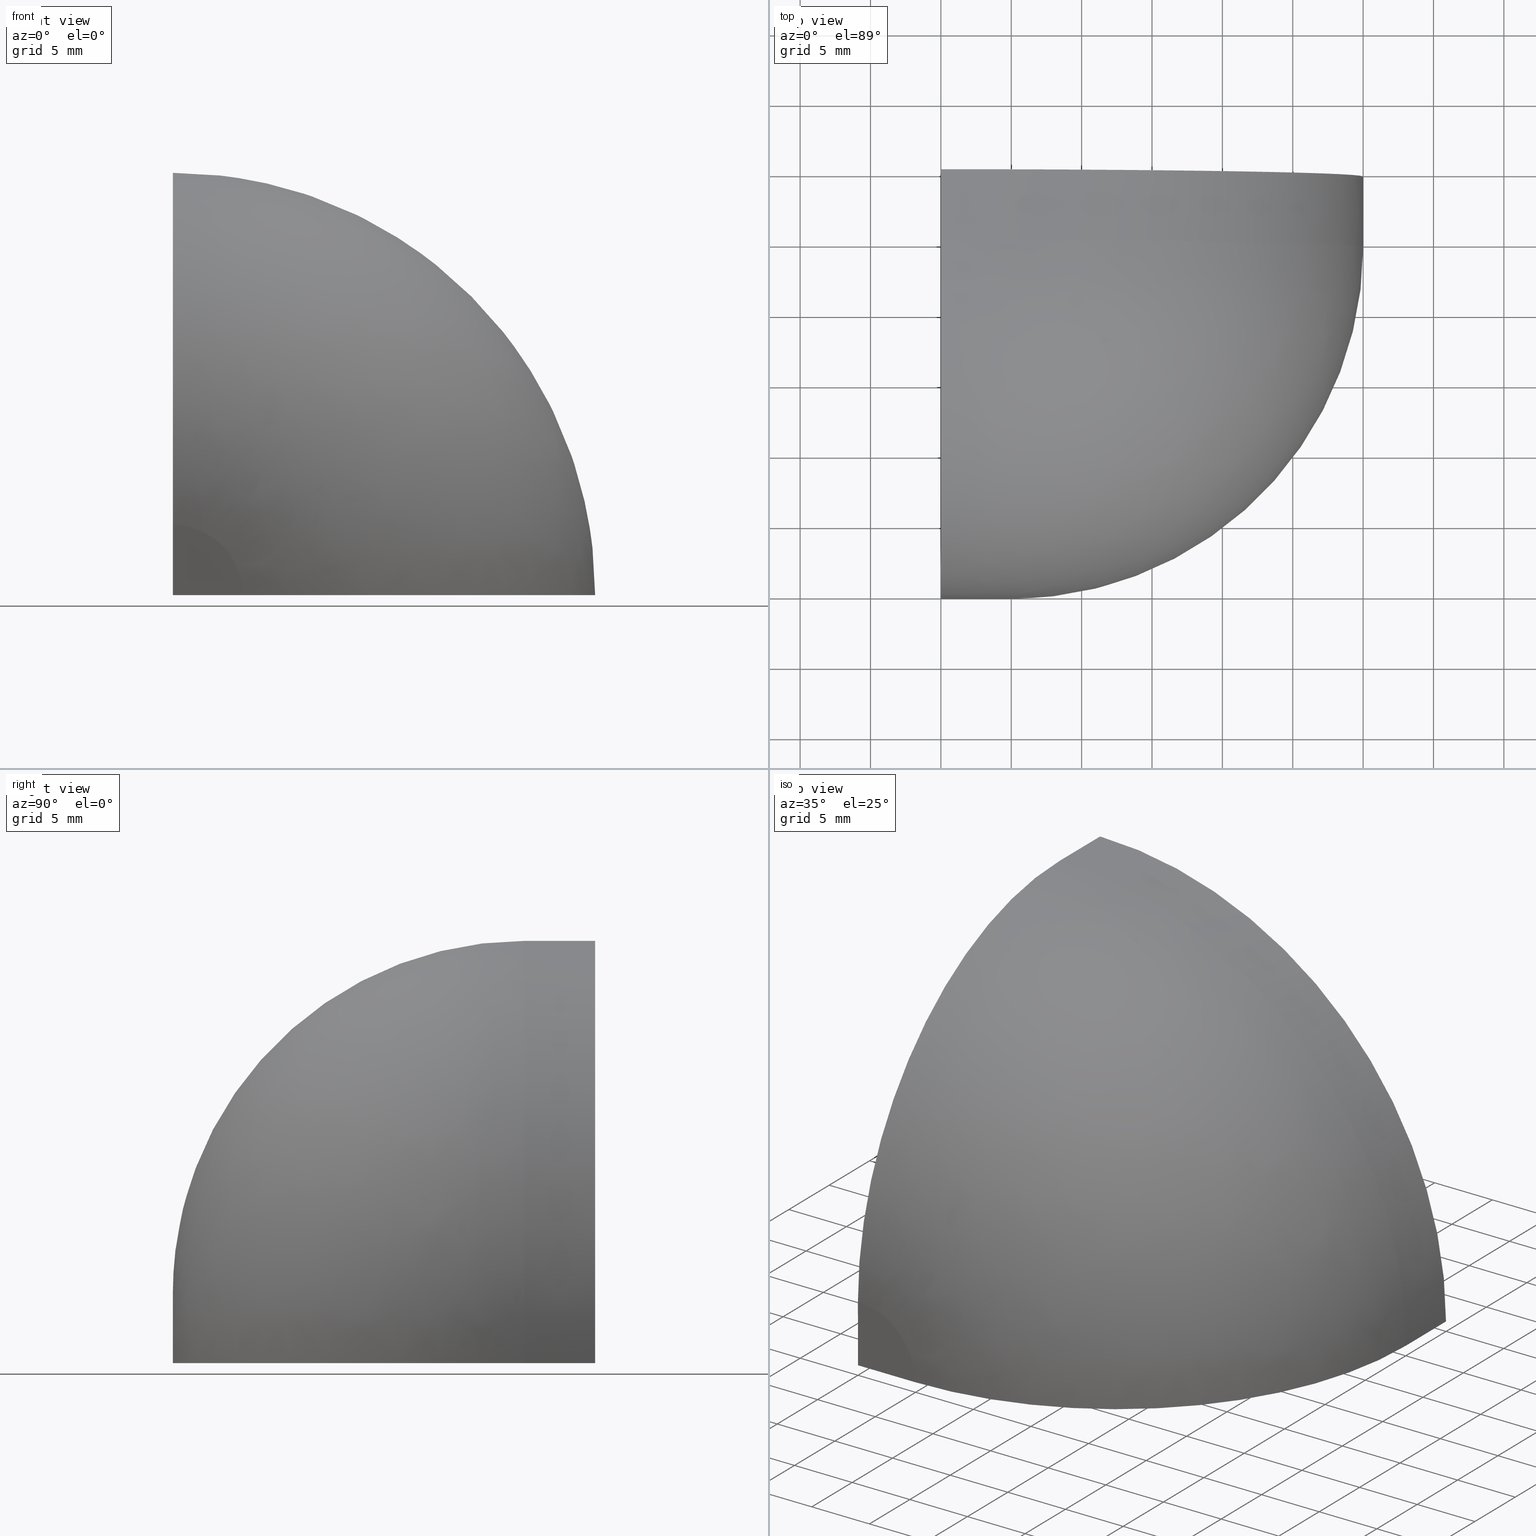
[diagram: canonical four-view strip — front | top / right | iso, engineering-drawing reading convention]
A machine part, canonical four-view strip (front | top / right | iso — engineering-drawing reading convention). The complete STEP part file that produces these views, byte-faithful:
ISO-10303-21;
HEADER;
/* Generated by software containing ST-Developer
 * from STEP Tools, Inc. (www.steptools.com) 
 */

FILE_DESCRIPTION(
/* description */ ('TAPPO ROTONDO 3 VIE SERIE 30 GRIGIO'),
/* implementation_level */ '2;1');

FILE_NAME(
/* name */ 
'Q:\\Catalogo\\2_Accessori Dierre\\Per Download Web e catalogo cartace
o\\CATALOGO ELEMENTI ASSEMBLAGGIO\\PAGINA 36\\CTPTG0000016.stp',
/* time_stamp */ '2018-11-05T14:07:49+01:00',
/* author */ ('fzagni'),
/* organization */ (''),
/* preprocessor_version */ 'ST-DEVELOPER v16.1',
/* originating_system */ 'Autodesk Inventor 2016',
/* authorisation */ '');

FILE_SCHEMA (('AUTOMOTIVE_DESIGN { 1 0 10303 214 3 1 1 }'));
ENDSEC;

DATA;
#10=MECHANICAL_DESIGN_GEOMETRIC_PRESENTATION_REPRESENTATION('',(#13),#302);
#11=SHAPE_REPRESENTATION_RELATIONSHIP('SRR','None',#311,#12);
#12=ADVANCED_BREP_SHAPE_REPRESENTATION('',(#14),#301);
#13=STYLED_ITEM('',(#320),#14);
#14=MANIFOLD_SOLID_BREP('Solido2',#160);
#15=PLANE('',#174);
#16=PLANE('',#177);
#17=PLANE('',#178);
#18=LINE('',#252,#29);
#19=LINE('',#253,#30);
#20=LINE('',#257,#31);
#21=LINE('',#259,#32);
#22=LINE('',#283,#33);
#23=LINE('',#285,#34);
#24=LINE('',#289,#35);
#25=LINE('',#291,#36);
#26=LINE('',#294,#37);
#27=LINE('',#295,#38);
#28=LINE('',#297,#39);
#29=VECTOR('',#191,4.98962349888907);
#30=VECTOR('',#192,4.98962349888907);
#31=VECTOR('',#195,4.97538714478859);
#32=VECTOR('',#196,4.97538714478859);
#33=VECTOR('',#207,5.0010638607987);
#34=VECTOR('',#208,5.0010638607987);
#35=VECTOR('',#213,2.00000117402253);
#36=VECTOR('',#214,2.00000117402253);
#37=VECTOR('',#219,5.00000292033832);
#38=VECTOR('',#220,5.00000292033832);
#39=VECTOR('',#223,2.00000054143192);
#40=CONICAL_SURFACE('',#166,4.98962214811873,89.9578405913785);
#41=CONICAL_SURFACE('',#167,2.48769289893613,89.9578405913526);
#42=CONICAL_SURFACE('',#172,27.9972905586299,0.0620812910435585);
#43=CONICAL_SURFACE('',#176,29.9972911578758,0.0620812910434206);
#44=FACE_OUTER_BOUND('',#53,.T.);
#45=FACE_OUTER_BOUND('',#54,.T.);
#46=FACE_OUTER_BOUND('',#55,.T.);
#47=FACE_OUTER_BOUND('',#56,.T.);
#48=FACE_OUTER_BOUND('',#57,.T.);
#49=FACE_OUTER_BOUND('',#58,.T.);
#50=FACE_OUTER_BOUND('',#59,.T.);
#51=FACE_OUTER_BOUND('',#60,.T.);
#52=FACE_OUTER_BOUND('',#61,.T.);
#53=EDGE_LOOP('',(#107,#108,#109,#110));
#54=EDGE_LOOP('',(#111,#112,#113));
#55=EDGE_LOOP('',(#114,#115,#116));
#56=EDGE_LOOP('',(#117,#118,#119,#120));
#57=EDGE_LOOP('',(#121,#122,#123,#124));
#58=EDGE_LOOP('',(#125,#126,#127,#128));
#59=EDGE_LOOP('',(#129,#130,#131,#132));
#60=EDGE_LOOP('',(#133,#134,#135,#136,#137,#138,#139,#140));
#61=EDGE_LOOP('',(#141,#142,#143,#144,#145,#146,#147,#148));
#62=CIRCLE('',#162,24.9999999999996);
#63=CIRCLE('',#163,29.9999999662594);
#64=CIRCLE('',#164,24.9999999999996);
#65=CIRCLE('',#165,4.98962214811873);
#66=CIRCLE('',#168,4.97538579787226);
#67=CIRCLE('',#169,22.9999999999996);
#68=CIRCLE('',#170,22.9999999999996);
#69=CIRCLE('',#171,27.99999994179);
#70=CIRCLE('',#173,27.9945811754697);
#71=CIRCLE('',#175,29.9945823494923);
#72=VERTEX_POINT('',#242);
#73=VERTEX_POINT('',#243);
#74=VERTEX_POINT('',#245);
#75=VERTEX_POINT('',#247);
#76=VERTEX_POINT('',#251);
#77=VERTEX_POINT('',#255);
#78=VERTEX_POINT('',#256);
#79=VERTEX_POINT('',#258);
#80=VERTEX_POINT('',#276);
#81=VERTEX_POINT('',#278);
#82=VERTEX_POINT('',#282);
#83=VERTEX_POINT('',#284);
#84=VERTEX_POINT('',#288);
#85=VERTEX_POINT('',#290);
#86=EDGE_CURVE('',#72,#73,#62,.T.);
#87=EDGE_CURVE('',#72,#74,#63,.T.);
#88=EDGE_CURVE('',#75,#74,#64,.T.);
#89=EDGE_CURVE('',#73,#75,#65,.T.);
#90=EDGE_CURVE('',#73,#76,#18,.T.);
#91=EDGE_CURVE('',#76,#75,#19,.T.);
#92=EDGE_CURVE('',#77,#78,#20,.T.);
#93=EDGE_CURVE('',#79,#77,#21,.T.);
#94=EDGE_CURVE('',#78,#79,#66,.T.);
#95=EDGE_CURVE('',#78,#80,#67,.T.);
#96=EDGE_CURVE('',#81,#79,#68,.T.);
#97=EDGE_CURVE('',#80,#81,#69,.T.);
#98=EDGE_CURVE('',#80,#82,#22,.T.);
#99=EDGE_CURVE('',#83,#81,#23,.T.);
#100=EDGE_CURVE('',#82,#83,#70,.T.);
#101=EDGE_CURVE('',#82,#84,#24,.T.);
#102=EDGE_CURVE('',#85,#83,#25,.T.);
#103=EDGE_CURVE('',#84,#85,#71,.T.);
#104=EDGE_CURVE('',#84,#72,#26,.T.);
#105=EDGE_CURVE('',#74,#85,#27,.T.);
#106=EDGE_CURVE('',#76,#77,#28,.T.);
#107=ORIENTED_EDGE('',*,*,#86,.F.);
#108=ORIENTED_EDGE('',*,*,#87,.T.);
#109=ORIENTED_EDGE('',*,*,#88,.F.);
#110=ORIENTED_EDGE('',*,*,#89,.F.);
#111=ORIENTED_EDGE('',*,*,#90,.F.);
#112=ORIENTED_EDGE('',*,*,#89,.T.);
#113=ORIENTED_EDGE('',*,*,#91,.F.);
#114=ORIENTED_EDGE('',*,*,#92,.F.);
#115=ORIENTED_EDGE('',*,*,#93,.F.);
#116=ORIENTED_EDGE('',*,*,#94,.F.);
#117=ORIENTED_EDGE('',*,*,#95,.F.);
#118=ORIENTED_EDGE('',*,*,#94,.T.);
#119=ORIENTED_EDGE('',*,*,#96,.F.);
#120=ORIENTED_EDGE('',*,*,#97,.F.);
#121=ORIENTED_EDGE('',*,*,#98,.F.);
#122=ORIENTED_EDGE('',*,*,#97,.T.);
#123=ORIENTED_EDGE('',*,*,#99,.F.);
#124=ORIENTED_EDGE('',*,*,#100,.F.);
#125=ORIENTED_EDGE('',*,*,#101,.F.);
#126=ORIENTED_EDGE('',*,*,#100,.T.);
#127=ORIENTED_EDGE('',*,*,#102,.F.);
#128=ORIENTED_EDGE('',*,*,#103,.F.);
#129=ORIENTED_EDGE('',*,*,#104,.F.);
#130=ORIENTED_EDGE('',*,*,#103,.T.);
#131=ORIENTED_EDGE('',*,*,#105,.F.);
#132=ORIENTED_EDGE('',*,*,#87,.F.);
#133=ORIENTED_EDGE('',*,*,#104,.T.);
#134=ORIENTED_EDGE('',*,*,#86,.T.);
#135=ORIENTED_EDGE('',*,*,#90,.T.);
#136=ORIENTED_EDGE('',*,*,#106,.T.);
#137=ORIENTED_EDGE('',*,*,#92,.T.);
#138=ORIENTED_EDGE('',*,*,#95,.T.);
#139=ORIENTED_EDGE('',*,*,#98,.T.);
#140=ORIENTED_EDGE('',*,*,#101,.T.);
#141=ORIENTED_EDGE('',*,*,#105,.T.);
#142=ORIENTED_EDGE('',*,*,#102,.T.);
#143=ORIENTED_EDGE('',*,*,#99,.T.);
#144=ORIENTED_EDGE('',*,*,#96,.T.);
#145=ORIENTED_EDGE('',*,*,#93,.T.);
#146=ORIENTED_EDGE('',*,*,#106,.F.);
#147=ORIENTED_EDGE('',*,*,#91,.T.);
#148=ORIENTED_EDGE('',*,*,#88,.T.);
#149=(
BOUNDED_SURFACE()
B_SPLINE_SURFACE(2,2,((#227,#228,#229),(#230,#231,#232),(#233,#234,#235),
(#236,#237,#238),(#239,#240,#241)),.UNSPECIFIED.,.F.,.F.,.F.)
B_SPLINE_SURFACE_WITH_KNOTS((3,2,3),(3,3),(-1.11244347067442E-14,0.785605719766225,
1.57121143953246),(1.5707963267949,3.14159265358979),.UNSPECIFIED.)
GEOMETRIC_REPRESENTATION_ITEM()
RATIONAL_B_SPLINE_SURFACE(((1.,0.707106781186548,1.),(0.9238398133445,0.65325339674601,
0.9238398133445),(1.,0.707106781186548,1.),(0.923839813344502,0.653253396746012,
0.923839813344502),(1.,0.707106781186548,1.)))
REPRESENTATION_ITEM('')
SURFACE()
);
#150=(
BOUNDED_SURFACE()
B_SPLINE_SURFACE(2,2,((#261,#262,#263),(#264,#265,#266),(#267,#268,#269),
(#270,#271,#272),(#273,#274,#275)),.UNSPECIFIED.,.F.,.F.,.F.)
B_SPLINE_SURFACE_WITH_KNOTS((3,2,3),(3,3),(4.61278190302058E-5,0.785956318026223,
1.57186650823342),(1.5707963267949,3.14159265358979),.UNSPECIFIED.)
GEOMETRIC_REPRESENTATION_ITEM()
RATIONAL_B_SPLINE_SURFACE(((1.,0.707106781186548,1.),(0.923781530146996,
0.653212184301826,0.923781530146996),(1.,0.707106781186548,1.),(0.923781530146995,
0.653212184301825,0.923781530146995),(1.,0.707106781186548,1.)))
REPRESENTATION_ITEM('')
SURFACE()
);
#151=ADVANCED_FACE('',(#44),#149,.F.);
#152=ADVANCED_FACE('',(#45),#40,.F.);
#153=ADVANCED_FACE('',(#46),#41,.T.);
#154=ADVANCED_FACE('',(#47),#150,.T.);
#155=ADVANCED_FACE('',(#48),#42,.F.);
#156=ADVANCED_FACE('',(#49),#15,.T.);
#157=ADVANCED_FACE('',(#50),#43,.T.);
#158=ADVANCED_FACE('',(#51),#16,.F.);
#159=ADVANCED_FACE('',(#52),#17,.T.);
#160=CLOSED_SHELL('',(#151,#152,#153,#154,#155,#156,#157,#158,#159));
#161=AXIS2_PLACEMENT_3D('placement',#226,#179,#180);
#162=AXIS2_PLACEMENT_3D('',#244,#181,#182);
#163=AXIS2_PLACEMENT_3D('',#246,#183,#184);
#164=AXIS2_PLACEMENT_3D('',#248,#185,#186);
#165=AXIS2_PLACEMENT_3D('',#249,#187,#188);
#166=AXIS2_PLACEMENT_3D('',#250,#189,#190);
#167=AXIS2_PLACEMENT_3D('',#254,#193,#194);
#168=AXIS2_PLACEMENT_3D('',#260,#197,#198);
#169=AXIS2_PLACEMENT_3D('',#277,#199,#200);
#170=AXIS2_PLACEMENT_3D('',#279,#201,#202);
#171=AXIS2_PLACEMENT_3D('',#280,#203,#204);
#172=AXIS2_PLACEMENT_3D('',#281,#205,#206);
#173=AXIS2_PLACEMENT_3D('',#286,#209,#210);
#174=AXIS2_PLACEMENT_3D('',#287,#211,#212);
#175=AXIS2_PLACEMENT_3D('',#292,#215,#216);
#176=AXIS2_PLACEMENT_3D('',#293,#217,#218);
#177=AXIS2_PLACEMENT_3D('',#296,#221,#222);
#178=AXIS2_PLACEMENT_3D('',#298,#224,#225);
#179=DIRECTION('axis',(0.,0.,1.));
#180=DIRECTION('refdir',(1.,0.,0.));
#181=DIRECTION('center_axis',(0.,0.,-1.));
#182=DIRECTION('ref_axis',(0.000415112725642761,0.999999913840709,0.));
#183=DIRECTION('center_axis',(0.,-1.,0.));
#184=DIRECTION('ref_axis',(1.,0.,-1.48029736783175E-16));
#185=DIRECTION('center_axis',(-1.,0.,6.12323399573677E-17));
#186=DIRECTION('ref_axis',(2.5418323537187E-20,0.999999913840709,0.000415112725642761));
#187=DIRECTION('center_axis',(-6.29343229637442E-16,-1.,-1.5193689603784E-15));
#188=DIRECTION('ref_axis',(1.,-8.90025730740955E-16,2.22506432685239E-16));
#189=DIRECTION('center_axis',(0.,-1.,0.));
#190=DIRECTION('ref_axis',(1.,0.,0.));
#191=DIRECTION('',(-0.999999729284115,0.000735820424844899,0.));
#192=DIRECTION('',(6.12323233808005E-17,-0.000735820424844899,0.999999729284115));
#193=DIRECTION('center_axis',(0.,-1.,0.));
#194=DIRECTION('ref_axis',(1.,0.,0.));
#195=DIRECTION('',(0.999999729284114,-0.000735820425271908,0.));
#196=DIRECTION('',(-6.12323233808005E-17,0.000735820425271908,-0.999999729284114));
#197=DIRECTION('center_axis',(-6.31144004694163E-16,-1.,-1.52371641594311E-15));
#198=DIRECTION('ref_axis',(1.,-8.92572411248951E-16,8.92572411248951E-16));
#199=DIRECTION('center_axis',(0.,0.,1.));
#200=DIRECTION('ref_axis',(-0.00107018123424103,-0.999999427355899,0.));
#201=DIRECTION('center_axis',(1.,0.,-6.12323399573677E-17));
#202=DIRECTION('ref_axis',(-6.55297011510423E-20,-0.999999427355899,-0.00107018123424103));
#203=DIRECTION('center_axis',(0.,-1.,0.));
#204=DIRECTION('ref_axis',(1.,0.,-7.93016447809451E-17));
#205=DIRECTION('center_axis',(0.,-1.,0.));
#206=DIRECTION('ref_axis',(1.,0.,0.));
#207=DIRECTION('',(-0.00108352272058569,0.999999412989085,0.));
#208=DIRECTION('',(6.63466315784349E-20,-0.999999412989085,0.00108352272058569));
#209=DIRECTION('center_axis',(0.,-1.,0.));
#210=DIRECTION('ref_axis',(1.,0.,7.93169947902625E-17));
#211=DIRECTION('center_axis',(0.,1.,0.));
#212=DIRECTION('ref_axis',(0.,0.,1.));
#213=DIRECTION('',(1.,-2.7755559322803E-16,0.));
#214=DIRECTION('',(-6.12323399573677E-17,2.7755559322803E-16,-1.));
#215=DIRECTION('center_axis',(0.,-1.,0.));
#216=DIRECTION('ref_axis',(1.,0.,4.44169421673158E-16));
#217=DIRECTION('center_axis',(0.,-1.,0.));
#218=DIRECTION('ref_axis',(1.,0.,0.));
#219=DIRECTION('',(0.00108352272058328,-0.999999412989085,0.));
#220=DIRECTION('',(-6.63466315782876E-20,0.999999412989085,-0.00108352272058328));
#221=DIRECTION('center_axis',(0.,0.,1.));
#222=DIRECTION('ref_axis',(1.,0.,0.));
#223=DIRECTION('',(0.,1.,0.));
#224=DIRECTION('center_axis',(-1.,0.,6.12323399573677E-17));
#225=DIRECTION('ref_axis',(6.12323399573677E-17,0.,1.));
#226=CARTESIAN_POINT('',(0.,0.,0.));
#227=CARTESIAN_POINT('Ctrl Pts',(29.9999999662594,-4.99999998528202,0.));
#228=CARTESIAN_POINT('Ctrl Pts',(29.9999999662594,-4.99999998528202,29.9999999662594));
#229=CARTESIAN_POINT('Ctrl Pts',(0.,-4.99999998528202,29.9999999662594));
#230=CARTESIAN_POINT('Ctrl Pts',(29.9999999662595,-15.3583787679337,0.));
#231=CARTESIAN_POINT('Ctrl Pts',(29.9999999662595,-15.3583787679337,29.9999999662595));
#232=CARTESIAN_POINT('Ctrl Pts',(0.,-15.3583787679337,29.9999999662595));
#233=CARTESIAN_POINT('Ctrl Pts',(22.6740000022797,-22.6813382470415,0.));
#234=CARTESIAN_POINT('Ctrl Pts',(22.6740000022797,-22.6813382470415,22.6740000022797));
#235=CARTESIAN_POINT('Ctrl Pts',(0.,-22.6813382470415,22.6740000022797));
#236=CARTESIAN_POINT('Ctrl Pts',(15.3480000382998,-30.0042977261494,0.));
#237=CARTESIAN_POINT('Ctrl Pts',(15.3480000382998,-30.0042977261494,15.3480000382998));
#238=CARTESIAN_POINT('Ctrl Pts',(0.,-30.0042977261494,15.3480000382998));
#239=CARTESIAN_POINT('Ctrl Pts',(4.98962214811873,-29.9999978312996,0.));
#240=CARTESIAN_POINT('Ctrl Pts',(4.98962214811873,-29.9999978312996,4.98962214811873));
#241=CARTESIAN_POINT('Ctrl Pts',(0.,-29.9999978312996,4.98962214811873));
#242=CARTESIAN_POINT('',(29.9999999662594,-4.99999998528203,0.));
#243=CARTESIAN_POINT('',(4.98962214811873,-29.9999978312975,0.));
#244=CARTESIAN_POINT('Origin',(4.9999999662598,-4.9999999852823,0.));
#245=CARTESIAN_POINT('',(1.83697019665502E-15,-4.99999998528203,29.9999999662594));
#246=CARTESIAN_POINT('Origin',(4.44089209850063E-15,-4.99999998528203,4.44089209850063E-15));
#247=CARTESIAN_POINT('',(3.05526239632417E-16,-29.9999978312975,4.98962214811873));
#248=CARTESIAN_POINT('Origin',(3.06161697720847E-16,-4.9999999852823,4.9999999662598));
#249=CARTESIAN_POINT('Origin',(0.,-29.9999978312975,-1.11022302462516E-15));
#250=CARTESIAN_POINT('Origin',(0.,-29.9999978312975,0.));
#251=CARTESIAN_POINT('',(0.,-29.9963263644147,0.));
#252=CARTESIAN_POINT('',(4.98962214811873,-29.9999978312975,0.));
#253=CARTESIAN_POINT('',(3.05526239632417E-16,-29.9999978312975,4.98962214811873));
#254=CARTESIAN_POINT('Origin',(0.,-27.9981563187252,0.));
#255=CARTESIAN_POINT('',(0.,-27.9963258229828,0.));
#256=CARTESIAN_POINT('',(4.97538579787225,-27.9999868144676,0.));
#257=CARTESIAN_POINT('',(0.,-27.9963258229828,0.));
#258=CARTESIAN_POINT('',(3.04654514594373E-16,-27.9999868144676,4.97538579787225));
#259=CARTESIAN_POINT('',(0.,-27.9963258229828,0.));
#260=CARTESIAN_POINT('Origin',(-2.77555756156289E-15,-27.9999868144676,
-4.44089209850063E-15));
#261=CARTESIAN_POINT('Ctrl Pts',(27.99999994179,-5.00106092511962,0.));
#262=CARTESIAN_POINT('Ctrl Pts',(27.99999994179,-5.00106092511962,27.99999994179));
#263=CARTESIAN_POINT('Ctrl Pts',(0.,-5.00106092511962,27.99999994179));
#264=CARTESIAN_POINT('Ctrl Pts',(27.9995601678702,-14.5348721636404,0.));
#265=CARTESIAN_POINT('Ctrl Pts',(27.9995601678702,-14.5348721636404,27.9995601678702));
#266=CARTESIAN_POINT('Ctrl Pts',(0.,-14.5348721636404,27.9995601678702));
#267=CARTESIAN_POINT('Ctrl Pts',(21.2543758774627,-21.2725309419986,0.));
#268=CARTESIAN_POINT('Ctrl Pts',(21.2543758774627,-21.2725309419986,21.2543758774627));
#269=CARTESIAN_POINT('Ctrl Pts',(0.,-21.2725309419986,21.2543758774627));
#270=CARTESIAN_POINT('Ctrl Pts',(14.5091915870552,-28.0101897203567,0.));
#271=CARTESIAN_POINT('Ctrl Pts',(14.5091915870552,-28.0101897203567,14.5091915870552));
#272=CARTESIAN_POINT('Ctrl Pts',(0.,-28.0101897203567,14.5091915870552));
#273=CARTESIAN_POINT('Ctrl Pts',(4.97538579787225,-27.9999868144676,0.));
#274=CARTESIAN_POINT('Ctrl Pts',(4.97538579787225,-27.9999868144676,4.97538579787225));
#275=CARTESIAN_POINT('Ctrl Pts',(0.,-27.9999868144676,4.97538579787225));
#276=CARTESIAN_POINT('',(27.99999994179,-5.00106092511962,0.));
#277=CARTESIAN_POINT('Origin',(4.9999999662598,-4.9999999852823,0.));
#278=CARTESIAN_POINT('',(1.71450551524196E-15,-5.00106092511962,27.99999994179));
#279=CARTESIAN_POINT('Origin',(3.06161697720847E-16,-4.9999999852823,4.9999999662598));
#280=CARTESIAN_POINT('Origin',(0.,-5.00106092511962,2.22044604925031E-15));
#281=CARTESIAN_POINT('Origin',(0.,-2.50053046255981,0.));
#282=CARTESIAN_POINT('',(27.9945811754697,0.,0.));
#283=CARTESIAN_POINT('',(27.99999994179,-5.00106092511962,0.));
#284=CARTESIAN_POINT('',(1.71417371150049E-15,0.,27.9945811754697));
#285=CARTESIAN_POINT('',(1.71450551524196E-15,-5.00106092511962,27.99999994179));
#286=CARTESIAN_POINT('Origin',(-6.66133814775094E-15,0.,-2.22044604925031E-15));
#287=CARTESIAN_POINT('Origin',(29.9945823494923,-5.55111512312578E-16,0.));
#288=CARTESIAN_POINT('',(29.9945823494923,-5.55111512312578E-16,0.));
#289=CARTESIAN_POINT('',(27.9945811754697,0.,0.));
#290=CARTESIAN_POINT('',(1.83663846330337E-15,-5.55111512312578E-16,29.9945823494923));
#291=CARTESIAN_POINT('',(1.71417371150049E-15,0.,27.9945811754697));
#292=CARTESIAN_POINT('Origin',(-8.88178419700125E-15,-5.55111512312578E-16,
-1.33226762955019E-14));
#293=CARTESIAN_POINT('Origin',(0.,-2.49999999264101,0.));
#294=CARTESIAN_POINT('',(29.9945823494923,-5.55111512312578E-16,0.));
#295=CARTESIAN_POINT('',(1.83663846330337E-15,-5.55111512312578E-16,29.9945823494923));
#296=CARTESIAN_POINT('Origin',(18.8870890625135,-18.8846003090243,0.));
#297=CARTESIAN_POINT('',(0.,-29.9963263644147,0.));
#298=CARTESIAN_POINT('Origin',(1.15650065828091E-15,-18.8846003090243,18.8870890625135));
#299=UNCERTAINTY_MEASURE_WITH_UNIT(LENGTH_MEASURE(0.01),#303,
'DISTANCE_ACCURACY_VALUE',
'Maximum model space distance between geometric entities at asserted c
onnectivities');
#300=UNCERTAINTY_MEASURE_WITH_UNIT(LENGTH_MEASURE(1.E-6),#303,
'DISTANCE_ACCURACY_VALUE',
'Maximum model space distance between geometric entities at asserted c
onnectivities');
#301=(
GEOMETRIC_REPRESENTATION_CONTEXT(3)
GLOBAL_UNCERTAINTY_ASSIGNED_CONTEXT((#299))
GLOBAL_UNIT_ASSIGNED_CONTEXT((#303,#306,#304))
REPRESENTATION_CONTEXT('','3D')
);
#302=(
GEOMETRIC_REPRESENTATION_CONTEXT(3)
GLOBAL_UNCERTAINTY_ASSIGNED_CONTEXT((#300))
GLOBAL_UNIT_ASSIGNED_CONTEXT((#303,#306,#304))
REPRESENTATION_CONTEXT('','3D')
);
#303=(
LENGTH_UNIT()
NAMED_UNIT(*)
SI_UNIT(.MILLI.,.METRE.)
);
#304=(
NAMED_UNIT(*)
SI_UNIT($,.STERADIAN.)
SOLID_ANGLE_UNIT()
);
#305=DIMENSIONAL_EXPONENTS(0.,0.,0.,0.,0.,0.,0.);
#306=(
CONVERSION_BASED_UNIT('degree',#308)
NAMED_UNIT(#305)
PLANE_ANGLE_UNIT()
);
#307=(
NAMED_UNIT(*)
PLANE_ANGLE_UNIT()
SI_UNIT($,.RADIAN.)
);
#308=PLANE_ANGLE_MEASURE_WITH_UNIT(PLANE_ANGLE_MEASURE(0.01745329252),#307);
#309=SHAPE_DEFINITION_REPRESENTATION(#310,#311);
#310=PRODUCT_DEFINITION_SHAPE('',$,#313);
#311=SHAPE_REPRESENTATION('',(#161),#301);
#312=PRODUCT_DEFINITION_CONTEXT('part definition',#317,'design');
#313=PRODUCT_DEFINITION('440000008542','440000008542',#314,#312);
#314=PRODUCT_DEFINITION_FORMATION('','A',#319);
#315=PRODUCT_RELATED_PRODUCT_CATEGORY('440000008542','440000008542',(#319));
#316=APPLICATION_PROTOCOL_DEFINITION('international standard',
'automotive_design',2009,#317);
#317=APPLICATION_CONTEXT(
'Core Data for Automotive Mechanical Design Process');
#318=PRODUCT_CONTEXT('part definition',#317,'mechanical');
#319=PRODUCT('440000008542','440000008542',$,(#318));
#320=PRESENTATION_STYLE_ASSIGNMENT((#321));
#321=SURFACE_STYLE_USAGE(.BOTH.,#322);
#322=SURFACE_SIDE_STYLE('',(#323));
#323=SURFACE_STYLE_FILL_AREA(#324);
#324=FILL_AREA_STYLE('',(#325));
#325=FILL_AREA_STYLE_COLOUR('',#326);
#326=COLOUR_RGB('',0.501960784313725,0.501960784313725,0.501960784313725);
ENDSEC;
END-ISO-10303-21;
